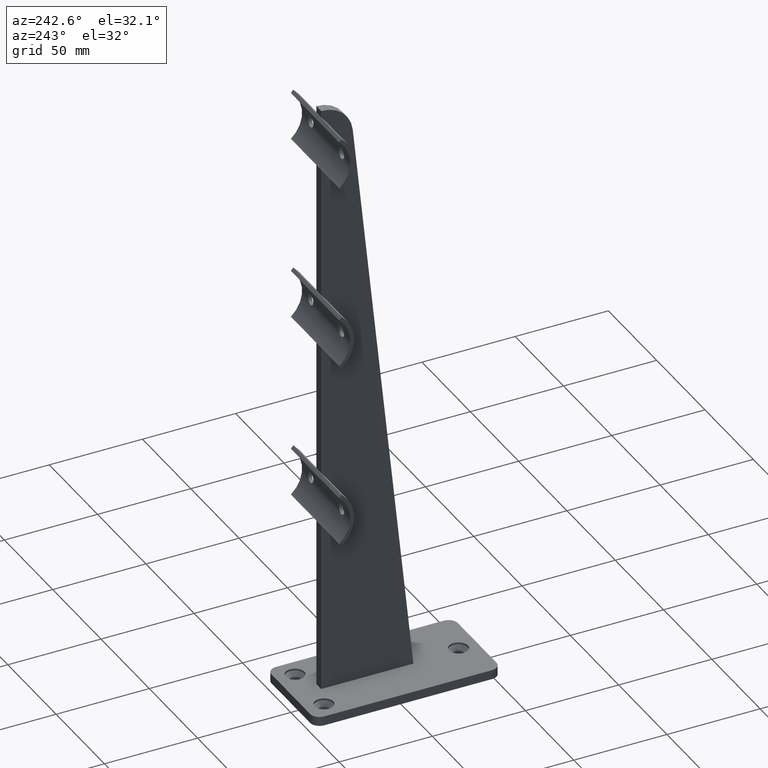
[diagram: clean part render]
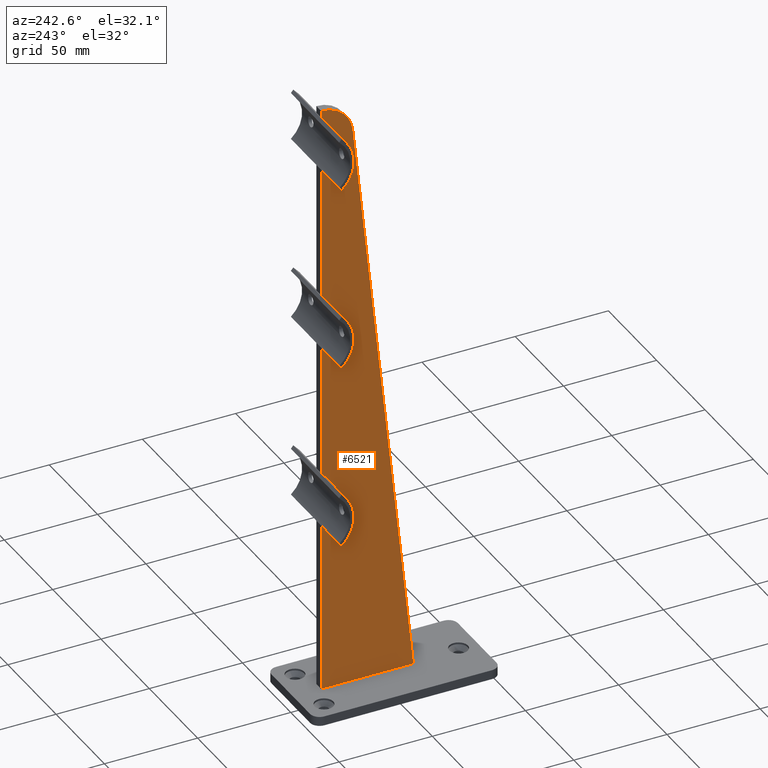
[diagram: same view with one face highlighted and labeled with its STEP entity id]
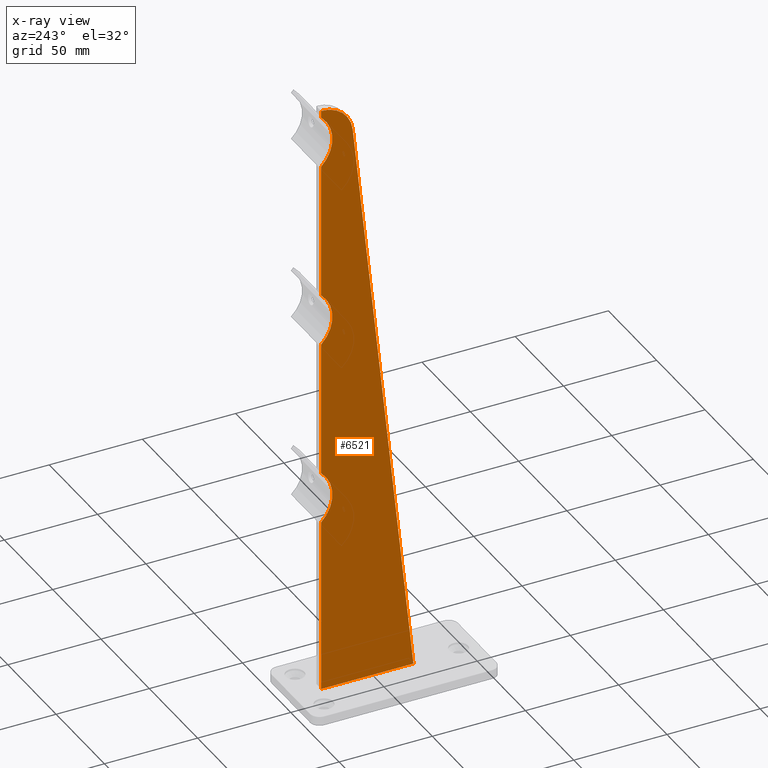
[diagram: x-ray of the same camera — body ghosted, the highlighted face saturated]
A machine part, auxiliary view. The second image highlights one B-rep face of the part: STEP entity #6521.
The next image is the same camera in x-ray: the body ghosted, the highlighted face saturated — about 0% of this face is hidden behind the body in this view.
In plain terms, the highlighted planar face has unit normal (-1, -0, 0).
Its self-contained STEP definition (entity closure, byte-faithful):
#74 = LINE ( 'NONE', #2975, #1418 ) ;
#162 = DIRECTION ( 'NONE',  ( 0.000000000000000000, -8.873161760921302843E-17, 1.000000000000000000 ) ) ;
#353 = CIRCLE ( 'NONE', #7293, 17.00969965575027487 ) ;
#362 = AXIS2_PLACEMENT_3D ( 'NONE', #10722, #9717, #5012 ) ;
#407 = DIRECTION ( 'NONE',  ( 0.000000000000000000, 7.362221648707921417E-16, 1.000000000000000000 ) ) ;
#557 = VERTEX_POINT ( 'NONE', #7402 ) ;
#584 = ORIENTED_EDGE ( 'NONE', *, *, #2969, .T. ) ;
#626 = DIRECTION ( 'NONE',  ( 1.000000000000000000, 0.000000000000000000, 0.000000000000000000 ) ) ;
#788 = CARTESIAN_POINT ( 'NONE',  ( -2.500000000000000000, -14.47447882367166194, 5.000000000000002665 ) ) ;
#1040 = ORIENTED_EDGE ( 'NONE', *, *, #10471, .F. ) ;
#1146 = VERTEX_POINT ( 'NONE', #6041 ) ;
#1184 = ORIENTED_EDGE ( 'NONE', *, *, #4165, .T. ) ;
#1418 = VECTOR ( 'NONE', #11621, 1000.000000000000000 ) ;
#1981 = ORIENTED_EDGE ( 'NONE', *, *, #9208, .F. ) ;
#2273 = VECTOR ( 'NONE', #6320, 1000.000000000000000 ) ;
#2308 = EDGE_CURVE ( 'NONE', #12275, #9368, #74, .T. ) ;
#2402 = CARTESIAN_POINT ( 'NONE',  ( -2.500000000000000000, 34.99999999999996447, 312.9903003442497038 ) ) ;
#2446 = EDGE_CURVE ( 'NONE', #9477, #11172, #8691, .T. ) ;
#2628 = DIRECTION ( 'NONE',  ( 0.000000000000000000, 0.000000000000000000, 1.000000000000000000 ) ) ;
#2818 = CARTESIAN_POINT ( 'NONE',  ( -2.500000000000000000, 18.08348125871813750, 314.7682981099094945 ) ) ;
#2923 = DIRECTION ( 'NONE',  ( 1.000000000000000000, 0.000000000000000000, -0.000000000000000000 ) ) ;
#2969 = EDGE_CURVE ( 'NONE', #12275, #8419, #6171, .T. ) ;
#2975 = CARTESIAN_POINT ( 'NONE',  ( -2.500000000000000000, 34.99999999999999289, 0.000000000000000000 ) ) ;
#2998 = CARTESIAN_POINT ( 'NONE',  ( -2.500000000000000000, 34.99999999999997868, 223.3995412747509874 ) ) ;
#3086 = VERTEX_POINT ( 'NONE', #2818 ) ;
#3131 = CARTESIAN_POINT ( 'NONE',  ( -2.500000000000000000, 34.99999999999996447, 330.0000000000000000 ) ) ;
#3385 = EDGE_LOOP ( 'NONE', ( #11592, #4545, #11549, #4368, #8872, #1184, #9669, #584, #1981, #1040 ) ) ;
#3659 = VERTEX_POINT ( 'NONE', #10889 ) ;
#3775 = CARTESIAN_POINT ( 'NONE',  ( -2.499999999999998668, 34.99999999999998579, 198.7086983935525950 ) ) ;
#3815 = PLANE ( 'NONE',  #4378 ) ;
#3889 = EDGE_CURVE ( 'NONE', #1146, #5045, #10327, .T. ) ;
#3966 = CARTESIAN_POINT ( 'NONE',  ( -2.499999999999998668, 47.84999999999998010, 212.5000000000000284 ) ) ;
#4165 = EDGE_CURVE ( 'NONE', #1146, #9368, #6452, .T. ) ;
#4363 = CIRCLE ( 'NONE', #7385, 18.85000000000003340 ) ;
#4368 = ORIENTED_EDGE ( 'NONE', *, *, #7189, .T. ) ;
#4378 = AXIS2_PLACEMENT_3D ( 'NONE', #5874, #9605, #7736 ) ;
#4545 = ORIENTED_EDGE ( 'NONE', *, *, #9652, .T. ) ;
#5012 = DIRECTION ( 'NONE',  ( 0.000000000000000000, 0.000000000000000000, 1.000000000000000000 ) ) ;
#5045 = VERTEX_POINT ( 'NONE', #3775 ) ;
#5267 = LINE ( 'NONE', #9393, #11969 ) ;
#5268 = CARTESIAN_POINT ( 'NONE',  ( -2.500000000000000000, 0.000000000000000000, 5.000000000000000000 ) ) ;
#5715 = DIRECTION ( 'NONE',  ( 0.000000000000000000, -0.1045284632676463377, -0.9945218953682740670 ) ) ;
#5874 = CARTESIAN_POINT ( 'NONE',  ( -2.500000000000000000, 47.84999999999998010, 112.5000000000000000 ) ) ;
#6041 = CARTESIAN_POINT ( 'NONE',  ( -2.499999999999998668, 34.99999999999998579, 126.2913016064474760 ) ) ;
#6171 = LINE ( 'NONE', #5268, #6757 ) ;
#6272 = DIRECTION ( 'NONE',  ( 0.000000000000000000, 0.000000000000000000, -1.000000000000000000 ) ) ;
#6320 = DIRECTION ( 'NONE',  ( 0.000000000000000000, 0.000000000000000000, 1.000000000000000000 ) ) ;
#6322 = CARTESIAN_POINT ( 'NONE',  ( -2.500000000000000000, 34.99999999999996447, 323.3995412747509590 ) ) ;
#6452 = CIRCLE ( 'NONE', #362, 18.85000000000001918 ) ;
#6521 = ADVANCED_FACE ( 'NONE', ( #9230 ), #3815, .T. ) ;
#6757 = VECTOR ( 'NONE', #11080, 1000.000000000000000 ) ;
#6861 = DIRECTION ( 'NONE',  ( 0.000000000000000000, 0.000000000000000000, 1.000000000000000000 ) ) ;
#7189 = EDGE_CURVE ( 'NONE', #557, #5045, #8189, .T. ) ;
#7235 = CARTESIAN_POINT ( 'NONE',  ( -2.499999999999998668, 34.99999999999998579, 98.70869839355255237 ) ) ;
#7293 = AXIS2_PLACEMENT_3D ( 'NONE', #2402, #626, #6272 ) ;
#7385 = AXIS2_PLACEMENT_3D ( 'NONE', #8052, #7964, #407 ) ;
#7402 = CARTESIAN_POINT ( 'NONE',  ( -2.499999999999998668, 34.99999999999997868, 226.2913016064474618 ) ) ;
#7593 = EDGE_CURVE ( 'NONE', #557, #3659, #11163, .T. ) ;
#7690 = AXIS2_PLACEMENT_3D ( 'NONE', #3966, #2923, #6861 ) ;
#7736 = DIRECTION ( 'NONE',  ( 0.000000000000000000, 0.000000000000000000, 1.000000000000000000 ) ) ;
#7964 = DIRECTION ( 'NONE',  ( 1.000000000000000000, 0.000000000000000000, -0.000000000000000000 ) ) ;
#8052 = CARTESIAN_POINT ( 'NONE',  ( -2.499999999999998668, 47.84999999999998010, 312.5000000000000000 ) ) ;
#8189 = CIRCLE ( 'NONE', #7690, 18.84999999999997655 ) ;
#8419 = VERTEX_POINT ( 'NONE', #788 ) ;
#8691 = LINE ( 'NONE', #6322, #9881 ) ;
#8872 = ORIENTED_EDGE ( 'NONE', *, *, #3889, .F. ) ;
#9208 = EDGE_CURVE ( 'NONE', #3086, #8419, #5267, .T. ) ;
#9230 = FACE_OUTER_BOUND ( 'NONE', #3385, .T. ) ;
#9368 = VERTEX_POINT ( 'NONE', #7235 ) ;
#9393 = CARTESIAN_POINT ( 'NONE',  ( -2.500000000000000000, 18.08348125871821566, 314.7682981099094945 ) ) ;
#9477 = VERTEX_POINT ( 'NONE', #11181 ) ;
#9605 = DIRECTION ( 'NONE',  ( -1.000000000000000000, -0.000000000000000000, 0.000000000000000000 ) ) ;
#9652 = EDGE_CURVE ( 'NONE', #9477, #3659, #4363, .T. ) ;
#9659 = VECTOR ( 'NONE', #162, 1000.000000000000000 ) ;
#9669 = ORIENTED_EDGE ( 'NONE', *, *, #2308, .F. ) ;
#9717 = DIRECTION ( 'NONE',  ( 1.000000000000000000, 0.000000000000000000, -0.000000000000000000 ) ) ;
#9881 = VECTOR ( 'NONE', #2628, 1000.000000000000000 ) ;
#10131 = CARTESIAN_POINT ( 'NONE',  ( -2.500000000000000000, 34.99999999999999289, 5.000000000000000000 ) ) ;
#10327 = LINE ( 'NONE', #10989, #2273 ) ;
#10471 = EDGE_CURVE ( 'NONE', #11172, #3086, #353, .T. ) ;
#10722 = CARTESIAN_POINT ( 'NONE',  ( -2.499999999999998668, 47.84999999999998010, 112.5000000000000000 ) ) ;
#10889 = CARTESIAN_POINT ( 'NONE',  ( -2.499999999999998668, 34.99999999999997158, 298.7086983935525950 ) ) ;
#10989 = CARTESIAN_POINT ( 'NONE',  ( -2.500000000000000000, 34.99999999999998579, 123.3995412747509732 ) ) ;
#11080 = DIRECTION ( 'NONE',  ( 0.000000000000000000, -1.000000000000000000, 0.000000000000000000 ) ) ;
#11163 = LINE ( 'NONE', #2998, #9659 ) ;
#11172 = VERTEX_POINT ( 'NONE', #3131 ) ;
#11181 = CARTESIAN_POINT ( 'NONE',  ( -2.500000000000000000, 34.99999999999996447, 326.2913016064474050 ) ) ;
#11549 = ORIENTED_EDGE ( 'NONE', *, *, #7593, .F. ) ;
#11592 = ORIENTED_EDGE ( 'NONE', *, *, #2446, .F. ) ;
#11621 = DIRECTION ( 'NONE',  ( 0.000000000000000000, -1.365917829696338361E-16, 1.000000000000000000 ) ) ;
#11969 = VECTOR ( 'NONE', #5715, 1000.000000000000114 ) ;
#12275 = VERTEX_POINT ( 'NONE', #10131 ) ;